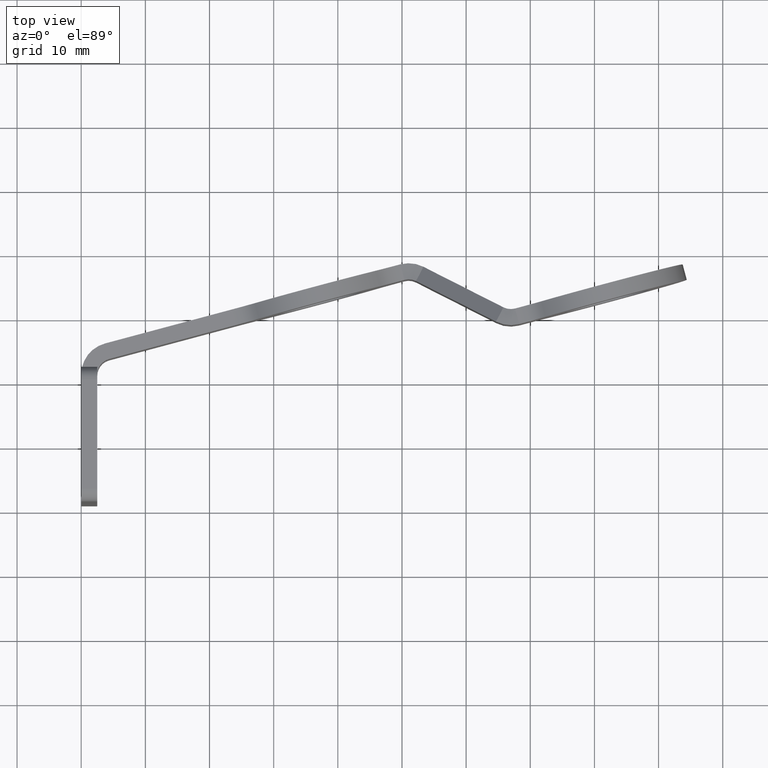
[diagram: clean part render]
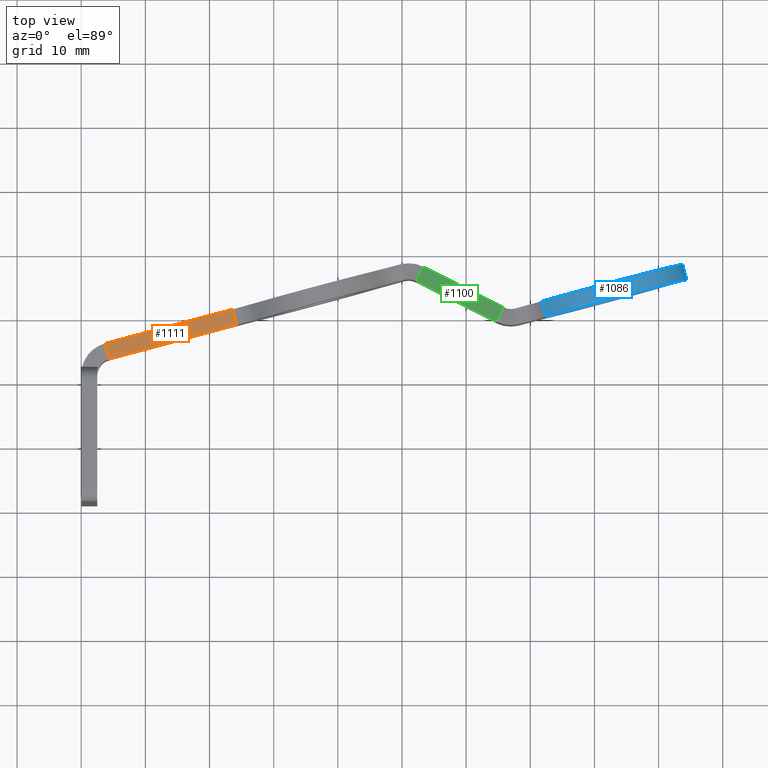
[diagram: same view with three faces highlighted in distinct colors, each labeled with its STEP entity id]
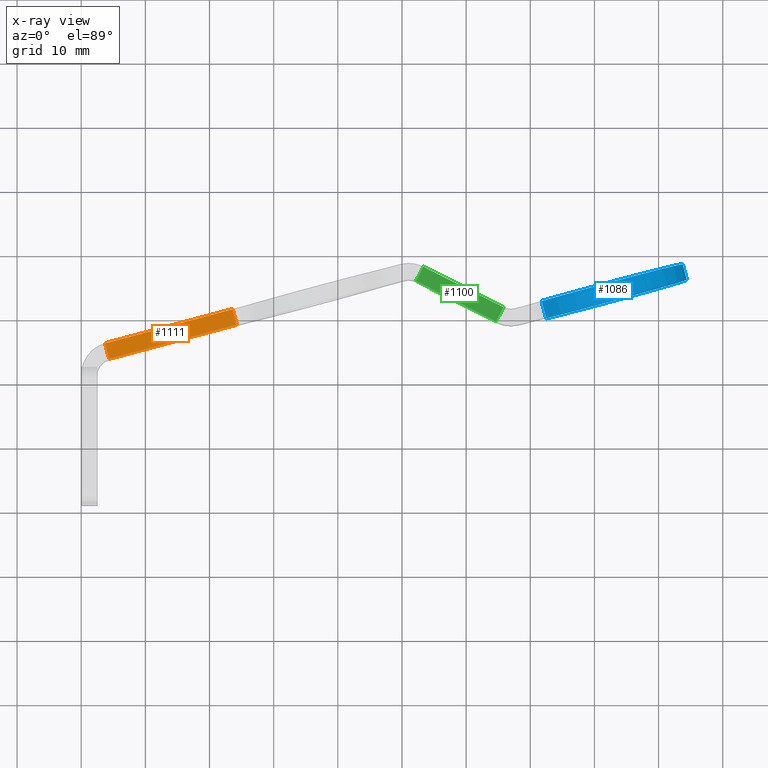
[diagram: x-ray of the same camera — body ghosted, the three highlighted faces saturated]
A machine part, top view with three faces highlighted in distinct colors.
The next image is the same camera in x-ray (body ghosted, the three faces saturated) — at least one of them is partly hidden behind the body in this view.
Their STEP definitions:

[orange] entity #1111 — the highlighted planar face has unit normal (0, 0, 1).
#156=FACE_OUTER_BOUND('',#223,.T.);
#223=EDGE_LOOP('',(#945,#946,#947,#948));
#280=LINE('',#1680,#386);
#288=LINE('',#1716,#394);
#328=LINE('',#1921,#434);
#330=LINE('',#1925,#436);
#386=VECTOR('',#1353,10.);
#394=VECTOR('',#1389,10.);
#434=VECTOR('',#1503,3.6);
#436=VECTOR('',#1509,3.6);
#496=VERTEX_POINT('',#1678);
#497=VERTEX_POINT('',#1679);
#508=VERTEX_POINT('',#1709);
#511=VERTEX_POINT('',#1714);
#610=EDGE_CURVE('',#496,#497,#280,.T.);
#628=EDGE_CURVE('',#511,#508,#288,.T.);
#690=EDGE_CURVE('',#508,#497,#328,.T.);
#692=EDGE_CURVE('',#496,#511,#330,.T.);
#945=ORIENTED_EDGE('',*,*,#610,.T.);
#946=ORIENTED_EDGE('',*,*,#690,.F.);
#947=ORIENTED_EDGE('',*,*,#628,.F.);
#948=ORIENTED_EDGE('',*,*,#692,.F.);
#1054=PLANE('',#1225);
#1111=ADVANCED_FACE('',(#156),#1054,.T.);
#1225=AXIS2_PLACEMENT_3D('',#1924,#1507,#1508);
#1353=DIRECTION('',(0.258819045102521,-0.965925826289068,0.));
#1389=DIRECTION('',(0.258819045102521,-0.965925826289068,0.));
#1503=DIRECTION('',(-0.965925826289068,-0.258819045102521,0.));
#1507=DIRECTION('center_axis',(0.,0.,1.));
#1508=DIRECTION('ref_axis',(1.,0.,0.));
#1509=DIRECTION('',(0.965925826289068,0.258819045102521,0.));
#1678=CARTESIAN_POINT('',(3.70590477448739,15.8296291314453,21.5));
#1679=CARTESIAN_POINT('',(4.35295238724369,13.4148145657227,21.5));
#1680=CARTESIAN_POINT('',(4.21060191243731,13.9460737701817,21.5));
#1709=CARTESIAN_POINT('',(24.235175628242,18.7422402268835,21.5));
#1714=CARTESIAN_POINT('',(23.5881280154857,21.1570547926061,21.5));
#1716=CARTESIAN_POINT('',(23.5881280154857,21.1570547926061,21.5));
#1921=CARTESIAN_POINT('',(-6.5714113399729,10.4876401271911,21.5));
#1924=CARTESIAN_POINT('Origin',(3.7059047744874,15.8296291314453,21.5));
#1925=CARTESIAN_POINT('',(-7.21845895272921,12.9024546929138,21.5));

[blue] entity #1086 — the highlighted cylindrical surface (partial cylindrical patch) has radius 13 mm, axis along (0.2588, -0.9659, 0).
#69=CIRCLE('',#1197,13.);
#70=CIRCLE('',#1198,13.);
#94=CYLINDRICAL_SURFACE('',#1196,13.);
#131=FACE_OUTER_BOUND('',#195,.T.);
#195=EDGE_LOOP('',(#830,#831,#832,#833));
#291=LINE('',#1734,#397);
#293=LINE('',#1742,#399);
#397=VECTOR('',#1408,10.);
#399=VECTOR('',#1416,10.);
#517=VERTEX_POINT('',#1731);
#518=VERTEX_POINT('',#1733);
#520=VERTEX_POINT('',#1739);
#521=VERTEX_POINT('',#1741);
#636=EDGE_CURVE('',#517,#518,#291,.T.);
#639=EDGE_CURVE('',#520,#517,#69,.T.);
#640=EDGE_CURVE('',#521,#520,#293,.T.);
#641=EDGE_CURVE('',#521,#518,#70,.T.);
#830=ORIENTED_EDGE('',*,*,#636,.F.);
#831=ORIENTED_EDGE('',*,*,#639,.F.);
#832=ORIENTED_EDGE('',*,*,#640,.F.);
#833=ORIENTED_EDGE('',*,*,#641,.T.);
#1086=ADVANCED_FACE('',(#131),#94,.T.);
#1196=AXIS2_PLACEMENT_3D('',#1738,#1412,#1413);
#1197=AXIS2_PLACEMENT_3D('',#1740,#1414,#1415);
#1198=AXIS2_PLACEMENT_3D('',#1743,#1417,#1418);
#1408=DIRECTION('',(0.258819045102522,-0.965925826289068,0.));
#1412=DIRECTION('center_axis',(0.258819045102522,-0.965925826289068,0.));
#1413=DIRECTION('ref_axis',(0.965925826289068,0.258819045102521,-1.45473230946492E-15));
#1414=DIRECTION('center_axis',(-0.258819045102521,0.965925826289068,0.));
#1415=DIRECTION('ref_axis',(-0.965925826289068,-0.258819045102521,0.));
#1416=DIRECTION('',(-0.258819045102522,0.965925826289068,0.));
#1417=DIRECTION('center_axis',(-0.258819045102515,0.96592582628907,0.));
#1418=DIRECTION('ref_axis',(-0.965925826289068,-0.258819045102522,0.));
#1731=CARTESIAN_POINT('',(71.8341239130523,22.2137949486542,16.8333333333334));
#1733=CARTESIAN_POINT('',(72.4811715258087,19.798980382931,16.8333333333334));
#1734=CARTESIAN_POINT('',(71.8341239130523,22.2137949486542,16.8333333333334));
#1738=CARTESIAN_POINT('Origin',(81.1935857512074,24.7216551897777,25.5));
#1739=CARTESIAN_POINT('',(71.8341239130524,22.2137949486542,34.1666666666667));
#1740=CARTESIAN_POINT('Origin',(81.1935857512074,24.7216551897777,25.5));
#1741=CARTESIAN_POINT('',(72.4811715258088,19.798980382931,34.1666666666667));
#1742=CARTESIAN_POINT('',(71.8341239130524,22.2137949486542,34.1666666666667));
#1743=CARTESIAN_POINT('Origin',(81.8406333639638,22.3068406240545,25.5));

[green] entity #1100 — the highlighted planar face has unit normal (-0.5088, 0.2648, 0.8192).
#145=FACE_OUTER_BOUND('',#211,.T.);
#211=EDGE_LOOP('',(#892,#893,#894,#895));
#311=LINE('',#1808,#417);
#315=LINE('',#1824,#421);
#317=LINE('',#1829,#423);
#320=LINE('',#1853,#426);
#417=VECTOR('',#1466,10.);
#421=VECTOR('',#1472,10.);
#423=VECTOR('',#1476,10.);
#426=VECTOR('',#1479,10.);
#536=VERTEX_POINT('',#1806);
#537=VERTEX_POINT('',#1807);
#540=VERTEX_POINT('',#1822);
#542=VERTEX_POINT('',#1828);
#665=EDGE_CURVE('',#536,#537,#311,.T.);
#671=EDGE_CURVE('',#537,#540,#315,.T.);
#673=EDGE_CURVE('',#542,#536,#317,.T.);
#677=EDGE_CURVE('',#542,#540,#320,.T.);
#892=ORIENTED_EDGE('',*,*,#671,.T.);
#893=ORIENTED_EDGE('',*,*,#677,.F.);
#894=ORIENTED_EDGE('',*,*,#673,.T.);
#895=ORIENTED_EDGE('',*,*,#665,.T.);
#1050=PLANE('',#1216);
#1100=ADVANCED_FACE('',(#145),#1050,.T.);
#1216=AXIS2_PLACEMENT_3D('',#1858,#1480,#1481);
#1466=DIRECTION('',(-0.461748613235035,-0.887010833178221,0.));
#1472=DIRECTION('',(0.726596737304423,-0.378242320479087,0.573576436351044));
#1476=DIRECTION('',(-0.726596737304423,0.378242320479087,-0.573576436351044));
#1479=DIRECTION('',(-0.461748613235035,-0.887010833178221,0.));
#1480=DIRECTION('center_axis',(-0.508768512699134,0.264848124069388,0.819152044288993));
#1481=DIRECTION('ref_axis',(-0.726596737304423,0.378242320479087,-0.573576436351044));
#1806=CARTESIAN_POINT('',(53.3480183455748,27.7712407971204,22.066155311135));
#1807=CARTESIAN_POINT('',(52.1936468124872,25.5537137141749,22.066155311135));
#1808=CARTESIAN_POINT('',(53.3480183455748,27.7712407971204,22.066155311135));
#1822=CARTESIAN_POINT('',(64.6611219036077,19.0635569781629,31.9079968250258));
#1824=CARTESIAN_POINT('',(64.6799846551709,19.0537376512163,31.9228871063413));
#1828=CARTESIAN_POINT('',(65.8154934366953,21.2810840611084,31.9079968250258));
#1829=CARTESIAN_POINT('',(65.8154934366953,21.2810840611084,31.9079968250258));
#1853=CARTESIAN_POINT('',(65.8154934366953,21.2810840611084,31.9079968250258));
#1858=CARTESIAN_POINT('Origin',(65.8154934366953,21.2810840611084,31.9079968250258));